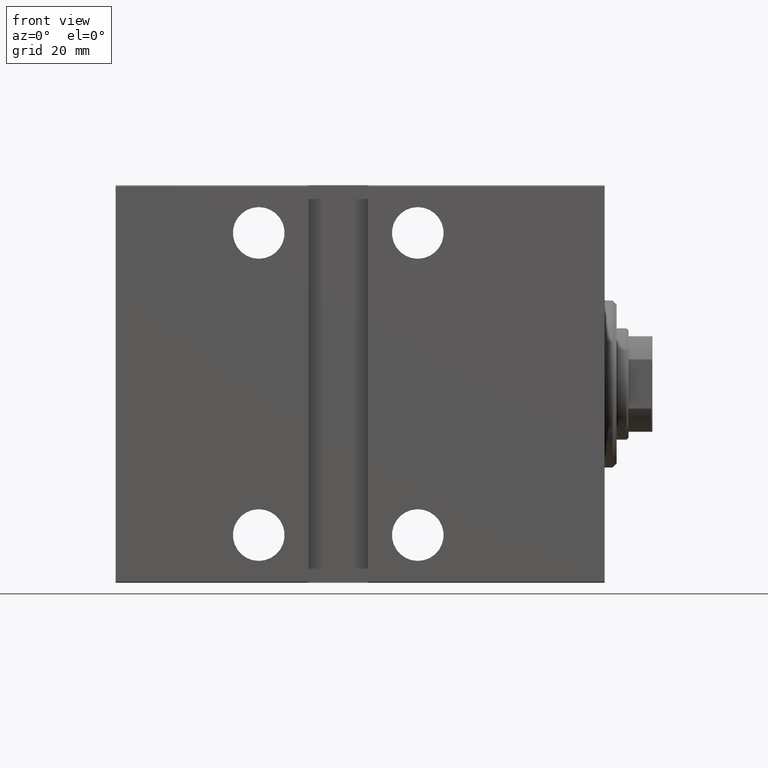
[diagram: clean part render]
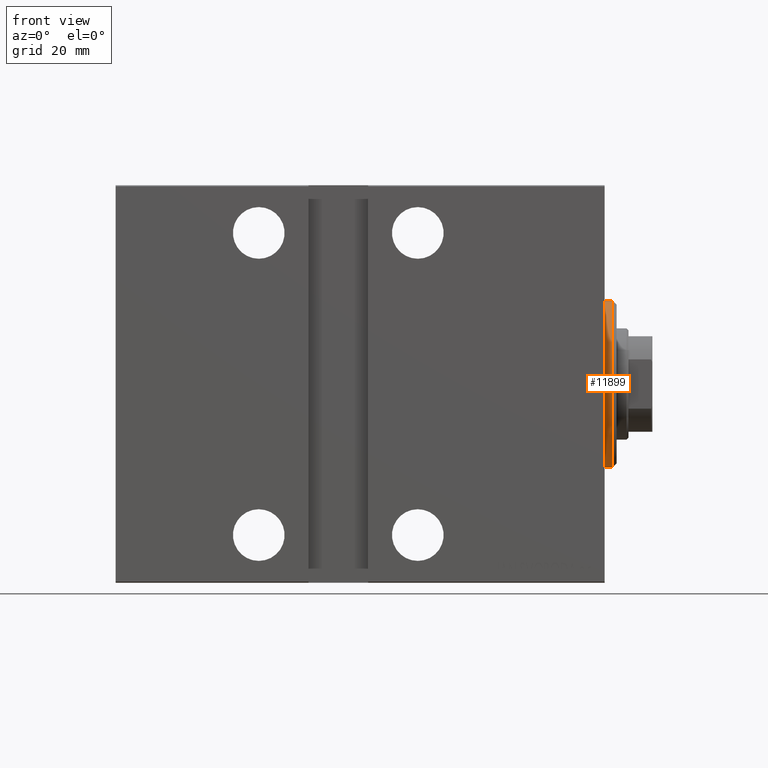
[diagram: same view with one face highlighted and labeled with its STEP entity id]
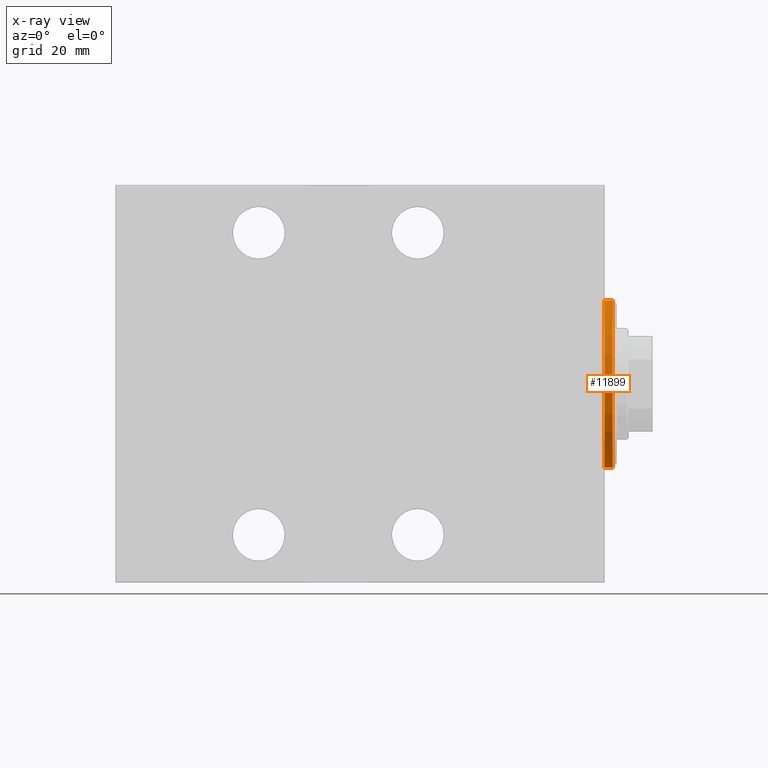
[diagram: x-ray of the same camera — body ghosted, the highlighted face saturated]
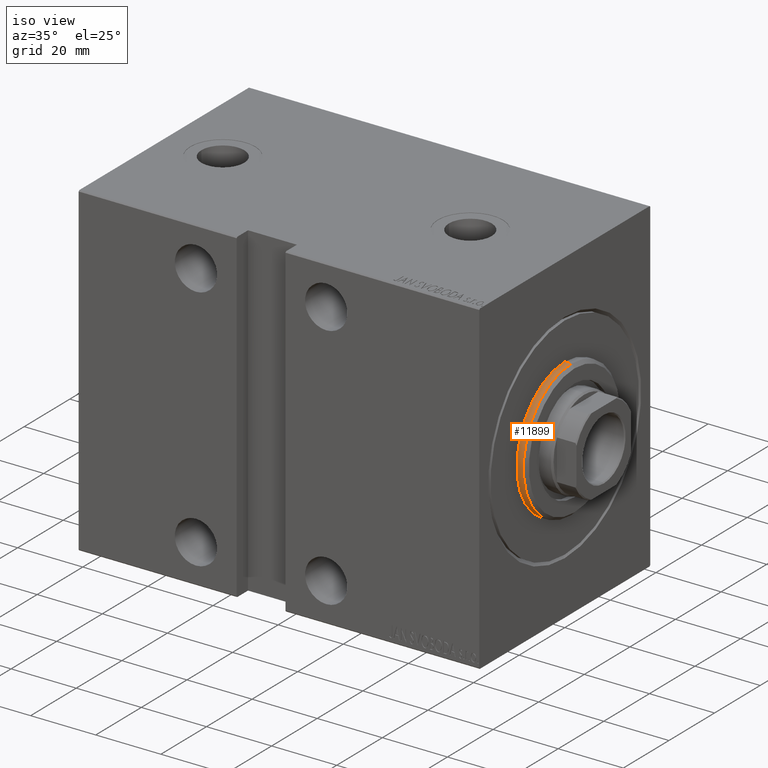
[diagram: same view with one face highlighted and labeled with its STEP entity id]
A machine part, front view. The second image highlights one B-rep face of the part: STEP entity #11899.
The next image is the same camera in x-ray: the body ghosted, the highlighted face saturated — about 0% of this face is hidden behind the body in this view.
A second angle (iso view) of the same face is appended — the face is thin or edge-on in the first view.
In plain terms, the highlighted cylindrical surface (partial cylindrical patch) has radius 21 mm, axis along (-1, -0, -0).
Its self-contained STEP definition (entity closure, byte-faithful):
#3540 = AXIS2_PLACEMENT_3D ( 'NONE', #6808, #23654, #26724 ) ;
#3838 = CARTESIAN_POINT ( 'NONE',  ( 3.000000000000000000, 0.000000000000000000, 21.00000000000000000 ) ) ;
#4821 = AXIS2_PLACEMENT_3D ( 'NONE', #10022, #39769, #13306 ) ;
#4943 = EDGE_CURVE ( 'NONE', #16197, #35110, #6243, .T. ) ;
#6243 = CIRCLE ( 'NONE', #4821, 21.00000000000000000 ) ;
#6808 = CARTESIAN_POINT ( 'NONE',  ( 1.999999999999995781, 0.000000000000000000, 0.000000000000000000 ) ) ;
#8039 = CYLINDRICAL_SURFACE ( 'NONE', #11271, 21.00000000000000000 ) ;
#8956 = ORIENTED_EDGE ( 'NONE', *, *, #13422, .T. ) ;
#10022 = CARTESIAN_POINT ( 'NONE',  ( 0.000000000000000000, 0.000000000000000000, 0.000000000000000000 ) ) ;
#10083 = VERTEX_POINT ( 'NONE', #16959 ) ;
#11271 = AXIS2_PLACEMENT_3D ( 'NONE', #37804, #20964, #34301 ) ;
#11311 = VECTOR ( 'NONE', #26959, 1000.000000000000000 ) ;
#11899 = ADVANCED_FACE ( 'NONE', ( #21825 ), #8039, .T. ) ;
#12478 = EDGE_LOOP ( 'NONE', ( #20737, #8956, #30474, #18932 ) ) ;
#13306 = DIRECTION ( 'NONE',  ( 0.000000000000000000, 0.000000000000000000, -1.000000000000000000 ) ) ;
#13422 = EDGE_CURVE ( 'NONE', #36624, #10083, #14736, .T. ) ;
#13622 = CARTESIAN_POINT ( 'NONE',  ( 3.000000000000000000, 2.571758278209441661E-15, -21.00000000000000000 ) ) ;
#14736 = CIRCLE ( 'NONE', #3540, 21.00000000000000000 ) ;
#16197 = VERTEX_POINT ( 'NONE', #37095 ) ;
#16959 = CARTESIAN_POINT ( 'NONE',  ( 1.999999999999995781, 0.000000000000000000, 21.00000000000000000 ) ) ;
#18932 = ORIENTED_EDGE ( 'NONE', *, *, #4943, .T. ) ;
#20737 = ORIENTED_EDGE ( 'NONE', *, *, #41770, .F. ) ;
#20964 = DIRECTION ( 'NONE',  ( -1.000000000000000000, -0.000000000000000000, -0.000000000000000000 ) ) ;
#21825 = FACE_OUTER_BOUND ( 'NONE', #12478, .T. ) ;
#23654 = DIRECTION ( 'NONE',  ( -1.000000000000000000, 0.000000000000000000, 0.000000000000000000 ) ) ;
#26724 = DIRECTION ( 'NONE',  ( 0.000000000000000000, 0.000000000000000000, -1.000000000000000000 ) ) ;
#26959 = DIRECTION ( 'NONE',  ( -1.000000000000000000, -0.000000000000000000, -0.000000000000000000 ) ) ;
#30082 = DIRECTION ( 'NONE',  ( -1.000000000000000000, -0.000000000000000000, -0.000000000000000000 ) ) ;
#30474 = ORIENTED_EDGE ( 'NONE', *, *, #30525, .T. ) ;
#30525 = EDGE_CURVE ( 'NONE', #10083, #16197, #34028, .T. ) ;
#30897 = LINE ( 'NONE', #13622, #11311 ) ;
#32524 = CARTESIAN_POINT ( 'NONE',  ( 1.999999999999995781, 2.571758278209441661E-15, -21.00000000000000000 ) ) ;
#34028 = LINE ( 'NONE', #3838, #34230 ) ;
#34230 = VECTOR ( 'NONE', #30082, 1000.000000000000000 ) ;
#34301 = DIRECTION ( 'NONE',  ( 0.000000000000000000, 0.000000000000000000, 1.000000000000000000 ) ) ;
#35110 = VERTEX_POINT ( 'NONE', #37789 ) ;
#36624 = VERTEX_POINT ( 'NONE', #32524 ) ;
#37095 = CARTESIAN_POINT ( 'NONE',  ( 0.000000000000000000, 0.000000000000000000, 21.00000000000000000 ) ) ;
#37789 = CARTESIAN_POINT ( 'NONE',  ( 0.000000000000000000, 2.571758278209441661E-15, -21.00000000000000000 ) ) ;
#37804 = CARTESIAN_POINT ( 'NONE',  ( 3.000000000000000000, 0.000000000000000000, 0.000000000000000000 ) ) ;
#39769 = DIRECTION ( 'NONE',  ( 1.000000000000000000, -0.000000000000000000, 0.000000000000000000 ) ) ;
#41770 = EDGE_CURVE ( 'NONE', #36624, #35110, #30897, .T. ) ;